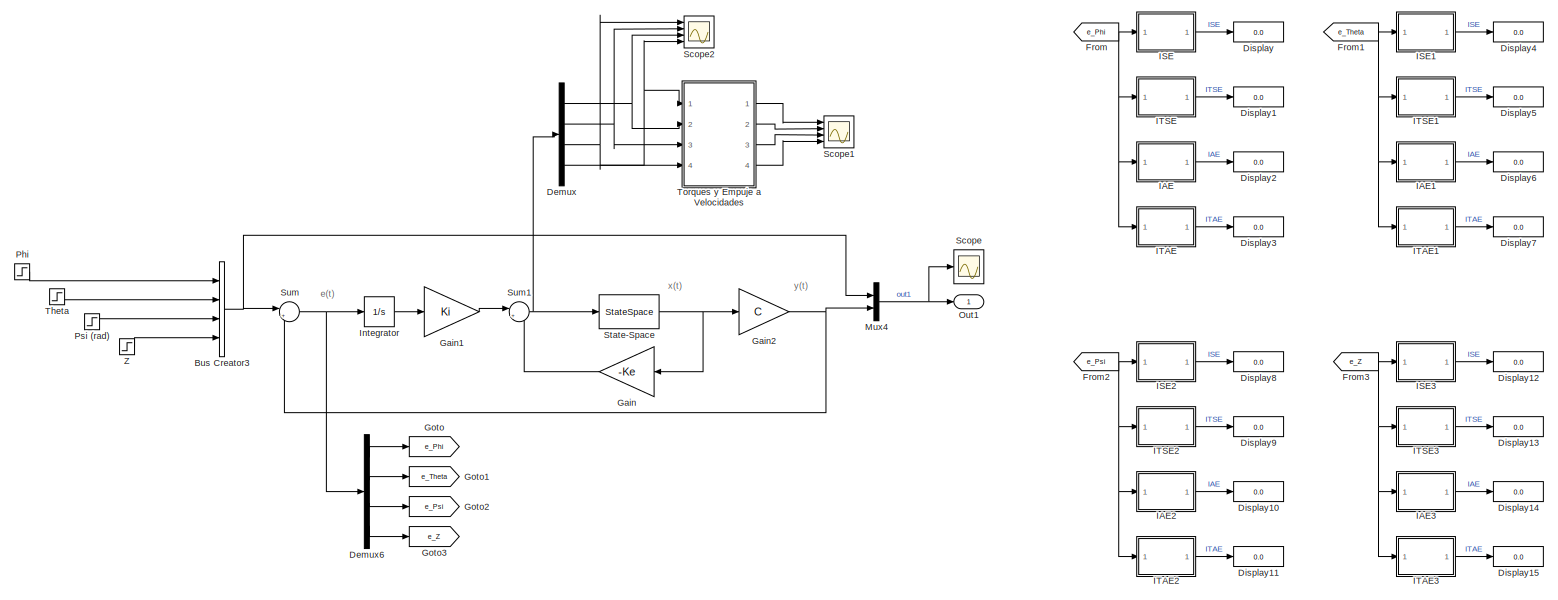
[diagram: root canvas - part 1/1, most of the canvas]
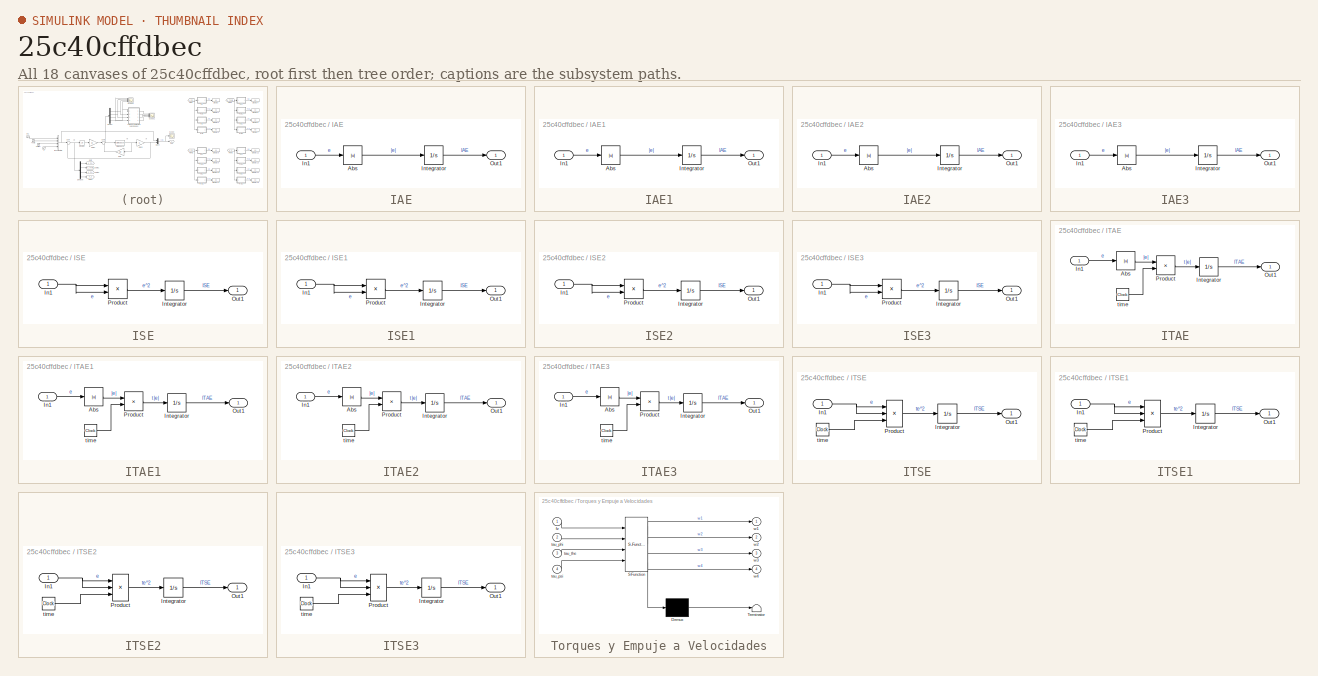
[diagram: thumbnail index - all 18 canvases of the model, root first then tree order]
MODEL slx_25c40cffdbec
KIND model
CONFIG AbsTol = auto
CONFIG EnableMultiTasking = off
CONFIG FixedStep = auto
CONFIG MaxStep = auto
CONFIG MinStep = auto
CONFIG RelTol = 1e-3
CONFIG SampleTimeConstraint = Unconstrained
CONFIG SolverName = VariableStepAuto
CONFIG StartTime = 0.0
CONFIG StopTime = 40
BLOCK [BusCreator] Bus Creator3
  DisplayOption = bar
  InheritFromInputs = on
  Inputs = 4
  Ports = [4, 1]
BLOCK [Demux] Demux
  Ports = [1, 4]
BLOCK [Demux] Demux6
  Ports = [1, 4]
BLOCK [Display] Display
  Decimation = 1
  Ports = [1]
BLOCK [Display] Display1
  Decimation = 1
  Ports = [1]
BLOCK [Display] Display10
  Decimation = 1
  Ports = [1]
BLOCK [Display] Display11
  Decimation = 1
  Ports = [1]
BLOCK [Display] Display12
  Decimation = 1
  Ports = [1]
BLOCK [Display] Display13
  Decimation = 1
  Ports = [1]
BLOCK [Display] Display14
  Decimation = 1
  Ports = [1]
BLOCK [Display] Display15
  Decimation = 1
  Ports = [1]
BLOCK [Display] Display2
  Decimation = 1
  Ports = [1]
BLOCK [Display] Display3
  Decimation = 1
  Ports = [1]
BLOCK [Display] Display4
  Decimation = 1
  Ports = [1]
BLOCK [Display] Display5
  Decimation = 1
  Ports = [1]
BLOCK [Display] Display6
  Decimation = 1
  Ports = [1]
BLOCK [Display] Display7
  Decimation = 1
  Ports = [1]
BLOCK [Display] Display8
  Decimation = 1
  Ports = [1]
BLOCK [Display] Display9
  Decimation = 1
  Ports = [1]
BLOCK [From] From
  GotoTag = e_Phi
BLOCK [From] From1
  GotoTag = e_Theta
BLOCK [From] From2
  GotoTag = e_Psi
BLOCK [From] From3
  GotoTag = e_Z
BLOCK [Gain] Gain
  Gain = -Ke
  Multiplication = Matrix(K*u) (u vector)
BLOCK [Gain] Gain1
  Gain = Ki
  Multiplication = Matrix(K*u) (u vector)
BLOCK [Gain] Gain2
  Gain = C
  Multiplication = Matrix(K*u) (u vector)
BLOCK [Goto] Goto
  GotoTag = e_Phi
BLOCK [Goto] Goto1
  GotoTag = e_Theta
BLOCK [Goto] Goto2
  GotoTag = e_Psi
BLOCK [Goto] Goto3
  GotoTag = e_Z
BLOCK [SubSystem] IAE
  Ports = [1, 1]
  RequestExecContextInheritance = off
BLOCK [Abs] IAE/Abs
  SaturateOnIntegerOverflow = off
BLOCK [Inport] IAE/In1
BLOCK [Integrator] IAE/Integrator
  Ports = [1, 1]
BLOCK [Outport] IAE/Out1
BLOCK [SubSystem] IAE1
  Ports = [1, 1]
  RequestExecContextInheritance = off
BLOCK [Abs] IAE1/Abs
  SaturateOnIntegerOverflow = off
BLOCK [Inport] IAE1/In1
BLOCK [Integrator] IAE1/Integrator
  Ports = [1, 1]
BLOCK [Outport] IAE1/Out1
BLOCK [SubSystem] IAE2
  Ports = [1, 1]
  RequestExecContextInheritance = off
BLOCK [Abs] IAE2/Abs
  SaturateOnIntegerOverflow = off
BLOCK [Inport] IAE2/In1
BLOCK [Integrator] IAE2/Integrator
  Ports = [1, 1]
BLOCK [Outport] IAE2/Out1
BLOCK [SubSystem] IAE3
  Ports = [1, 1]
  RequestExecContextInheritance = off
BLOCK [Abs] IAE3/Abs
  SaturateOnIntegerOverflow = off
BLOCK [Inport] IAE3/In1
BLOCK [Integrator] IAE3/Integrator
  Ports = [1, 1]
BLOCK [Outport] IAE3/Out1
BLOCK [SubSystem] ISE
  Ports = [1, 1]
  RequestExecContextInheritance = off
BLOCK [Inport] ISE/In1
BLOCK [Integrator] ISE/Integrator
  Ports = [1, 1]
BLOCK [Outport] ISE/Out1
BLOCK [Product] ISE/Product
  Ports = [2, 1]
BLOCK [SubSystem] ISE1
  Ports = [1, 1]
  RequestExecContextInheritance = off
BLOCK [Inport] ISE1/In1
BLOCK [Integrator] ISE1/Integrator
  Ports = [1, 1]
BLOCK [Outport] ISE1/Out1
BLOCK [Product] ISE1/Product
  Ports = [2, 1]
BLOCK [SubSystem] ISE2
  Ports = [1, 1]
  RequestExecContextInheritance = off
BLOCK [Inport] ISE2/In1
BLOCK [Integrator] ISE2/Integrator
  Ports = [1, 1]
BLOCK [Outport] ISE2/Out1
BLOCK [Product] ISE2/Product
  Ports = [2, 1]
BLOCK [SubSystem] ISE3
  Ports = [1, 1]
  RequestExecContextInheritance = off
BLOCK [Inport] ISE3/In1
BLOCK [Integrator] ISE3/Integrator
  Ports = [1, 1]
BLOCK [Outport] ISE3/Out1
BLOCK [Product] ISE3/Product
  Ports = [2, 1]
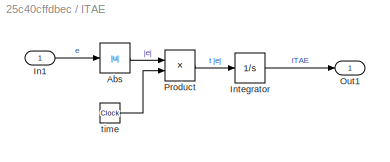
BLOCK [SubSystem] ITAE
  Ports = [1, 1]
  RequestExecContextInheritance = off
BLOCK [Abs] ITAE/Abs
  SaturateOnIntegerOverflow = off
BLOCK [Inport] ITAE/In1
BLOCK [Integrator] ITAE/Integrator
  Ports = [1, 1]
BLOCK [Outport] ITAE/Out1
BLOCK [Product] ITAE/Product
  Ports = [2, 1]
BLOCK [Clock] ITAE/time
BLOCK [SubSystem] ITAE1
  Ports = [1, 1]
  RequestExecContextInheritance = off
BLOCK [Abs] ITAE1/Abs
  SaturateOnIntegerOverflow = off
BLOCK [Inport] ITAE1/In1
BLOCK [Integrator] ITAE1/Integrator
  Ports = [1, 1]
BLOCK [Outport] ITAE1/Out1
BLOCK [Product] ITAE1/Product
  Ports = [2, 1]
BLOCK [Clock] ITAE1/time
BLOCK [SubSystem] ITAE2
  Ports = [1, 1]
  RequestExecContextInheritance = off
BLOCK [Abs] ITAE2/Abs
  SaturateOnIntegerOverflow = off
BLOCK [Inport] ITAE2/In1
BLOCK [Integrator] ITAE2/Integrator
  Ports = [1, 1]
BLOCK [Outport] ITAE2/Out1
BLOCK [Product] ITAE2/Product
  Ports = [2, 1]
BLOCK [Clock] ITAE2/time
BLOCK [SubSystem] ITAE3
  Ports = [1, 1]
  RequestExecContextInheritance = off
BLOCK [Abs] ITAE3/Abs
  SaturateOnIntegerOverflow = off
BLOCK [Inport] ITAE3/In1
BLOCK [Integrator] ITAE3/Integrator
  Ports = [1, 1]
BLOCK [Outport] ITAE3/Out1
BLOCK [Product] ITAE3/Product
  Ports = [2, 1]
BLOCK [Clock] ITAE3/time
BLOCK [SubSystem] ITSE
  Ports = [1, 1]
  RequestExecContextInheritance = off
BLOCK [Inport] ITSE/In1
BLOCK [Integrator] ITSE/Integrator
  Ports = [1, 1]
BLOCK [Outport] ITSE/Out1
BLOCK [Product] ITSE/Product
  Inputs = 3
  Ports = [3, 1]
BLOCK [Clock] ITSE/time
BLOCK [SubSystem] ITSE1
  Ports = [1, 1]
  RequestExecContextInheritance = off
BLOCK [Inport] ITSE1/In1
BLOCK [Integrator] ITSE1/Integrator
  Ports = [1, 1]
BLOCK [Outport] ITSE1/Out1
BLOCK [Product] ITSE1/Product
  Inputs = 3
  Ports = [3, 1]
BLOCK [Clock] ITSE1/time
BLOCK [SubSystem] ITSE2
  Ports = [1, 1]
  RequestExecContextInheritance = off
BLOCK [Inport] ITSE2/In1
BLOCK [Integrator] ITSE2/Integrator
  Ports = [1, 1]
BLOCK [Outport] ITSE2/Out1
BLOCK [Product] ITSE2/Product
  Inputs = 3
  Ports = [3, 1]
BLOCK [Clock] ITSE2/time
BLOCK [SubSystem] ITSE3
  Ports = [1, 1]
  RequestExecContextInheritance = off
BLOCK [Inport] ITSE3/In1
BLOCK [Integrator] ITSE3/Integrator
  Ports = [1, 1]
BLOCK [Outport] ITSE3/Out1
BLOCK [Product] ITSE3/Product
  Inputs = 3
  Ports = [3, 1]
BLOCK [Clock] ITSE3/time
BLOCK [Integrator] Integrator
  Ports = [1, 1]
BLOCK [Mux] Mux4
  DisplayOption = bar
  Inputs = 2
  Ports = [2, 1]
BLOCK [Outport] Out1
BLOCK [Step] Phi
  After = 10
  SampleTime = 0
  Time = 10
BLOCK [Step] Psi (rad)
  After = pi/2-0.001
  SampleTime = 0
  Time = 30
BLOCK [Scope] Scope
  Floating = off
  NumInputPorts = 1
  Ports = [1]
  ScopeSpecificationString = Simulink.scopes.TimeScopeBlockCfg('CurrentConfiguration', extmgr.ConfigurationSet(extmgr.Configuration('Core','General UI',true),extmgr.Configuration('Core','Source UI',true),extmgr.Configuration('Sources','WiredSimulink',true),extmgr.Configuration('Visuals','Time Domain',true,'SerializedDisplays',{struct('MinYLimReal','-1.87508','MaxYLimReal','16.87572','YLabelReal','','MinYLimMag','0.00000','Max...<+1710ch>
BLOCK [Scope] Scope1
  Floating = off
  NumInputPorts = 4
  Ports = [4]
  ScopeSpecificationString = Simulink.scopes.TimeScopeBlockCfg('CurrentConfiguration', extmgr.ConfigurationSet(extmgr.Configuration('Core','General UI',true),extmgr.Configuration('Core','Source UI',true),extmgr.Configuration('Sources','WiredSimulink',true,'DataLoggingVariableName','ScopeData1'),extmgr.Configuration('Visuals','Time Domain',true,'SerializedDisplays',{struct('MinYLimReal','15.06231','MaxYLimReal','114.43919','YL...<+1909ch>
BLOCK [Scope] Scope2
  Floating = off
  NumInputPorts = 4
  Ports = [4]
  ScopeSpecificationString = Simulink.scopes.TimeScopeBlockCfg('CurrentConfiguration', extmgr.ConfigurationSet(extmgr.Configuration('Core','General UI',true),extmgr.Configuration('Core','Source UI',true),extmgr.Configuration('Sources','WiredSimulink',true,'DataLoggingVariableName','ScopeData2'),extmgr.Configuration('Visuals','Time Domain',true,'SerializedDisplays',{struct('MinYLimReal','-20.70474','MaxYLimReal','9.36899','YLa...<+1542ch>
BLOCK [StateSpace] State-Space
  A = A
  B = B
  C = eye(12)
  D = D
  InitialCondition = 0
  ParameterTunability = Unconstrained
  Ports = [1, 1]
BLOCK [Sum] Sum
  Inputs = |+-
  Ports = [2, 1]
BLOCK [Sum] Sum1
  Inputs = |+-
  Ports = [2, 1]
BLOCK [Step] Theta
  After = 15
  SampleTime = 0
  Time = 20
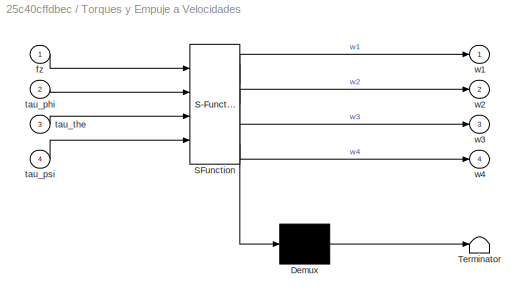
BLOCK [SubSystem] Torques y Empuje a Velocidades
  ErrorFcn = Stateflow.Translate.translate
  PermitHierarchicalResolution = ExplicitOnly
  Ports = [4, 4]
  RequestExecContextInheritance = off
  SFBlockType = MATLAB Function
  TreatAsAtomicUnit = on
BLOCK [Demux] Torques y Empuje a Velocidades/ Demux 
  Outputs = 1
  Ports = [1, 1]
BLOCK [S-Function] Torques y Empuje a Velocidades/ SFunction 
  EnableBusSupport = on
  FunctionName = sf_sfun
  PortCounts = [4 5]
  Ports = [4, 5]
  SFcnIsStateOwnerBlock = off
  SFunctionDeploymentMode = off
  Tag = Stateflow S-Function 1
BLOCK [Terminator] Torques y Empuje a Velocidades/ Terminator 
BLOCK [Inport] Torques y Empuje a Velocidades/fz
BLOCK [Inport] Torques y Empuje a Velocidades/tau_phi
  Port = 2
BLOCK [Inport] Torques y Empuje a Velocidades/tau_psi
  Port = 4
BLOCK [Inport] Torques y Empuje a Velocidades/tau_the
  Port = 3
BLOCK [Outport] Torques y Empuje a Velocidades/w1
BLOCK [Outport] Torques y Empuje a Velocidades/w2
  Port = 2
BLOCK [Outport] Torques y Empuje a Velocidades/w3
  Port = 3
BLOCK [Outport] Torques y Empuje a Velocidades/w4
  Port = 4
BLOCK [Step] Z
  After = 10
  SampleTime = 0
  Time = 0
ANNOTATION (root): e(t)
ANNOTATION (root): x(t)
ANNOTATION (root): y(t)
NET Bus Creator3:1 -> Mux4:1, Sum:1
LINE Demux6:1 -> Goto:1
LINE Demux6:2 -> Goto1:1
LINE Demux6:3 -> Goto2:1
LINE Demux6:4 -> Goto3:1
NET Demux:1 -> Scope2:3, Torques y Empuje a Velocidades:2
NET Demux:2 -> Scope2:2, Torques y Empuje a Velocidades:3
NET Demux:3 -> Scope2:1, Torques y Empuje a Velocidades:4
NET Demux:4 -> Scope2:4, Torques y Empuje a Velocidades:1
NET From1:1 -> IAE1:1, ISE1:1, ITAE1:1, ITSE1:1
NET From2:1 -> IAE2:1, ISE2:1, ITAE2:1, ITSE2:1
NET From3:1 -> IAE3:1, ISE3:1, ITAE3:1, ITSE3:1
NET From:1 -> IAE:1, ISE:1, ITAE:1, ITSE:1
LINE Gain1:1 -> Sum1:1
NET Gain2:1 -> Mux4:2, Sum:2
LINE Gain:1 -> Sum1:2
LINE IAE/Abs:1 -> IAE/Integrator:1
LINE IAE/In1:1 -> IAE/Abs:1
LINE IAE/Integrator:1 -> IAE/Out1:1
LINE IAE1/Abs:1 -> IAE1/Integrator:1
LINE IAE1/In1:1 -> IAE1/Abs:1
LINE IAE1/Integrator:1 -> IAE1/Out1:1
LINE IAE1:1 -> Display6:1
LINE IAE2/Abs:1 -> IAE2/Integrator:1
LINE IAE2/In1:1 -> IAE2/Abs:1
LINE IAE2/Integrator:1 -> IAE2/Out1:1
LINE IAE2:1 -> Display10:1
LINE IAE3/Abs:1 -> IAE3/Integrator:1
LINE IAE3/In1:1 -> IAE3/Abs:1
LINE IAE3/Integrator:1 -> IAE3/Out1:1
LINE IAE3:1 -> Display14:1
LINE IAE:1 -> Display2:1
NET ISE/In1:1 -> ISE/Product:1, ISE/Product:2
LINE ISE/Integrator:1 -> ISE/Out1:1
LINE ISE/Product:1 -> ISE/Integrator:1
NET ISE1/In1:1 -> ISE1/Product:1, ISE1/Product:2
LINE ISE1/Integrator:1 -> ISE1/Out1:1
LINE ISE1/Product:1 -> ISE1/Integrator:1
LINE ISE1:1 -> Display4:1
NET ISE2/In1:1 -> ISE2/Product:1, ISE2/Product:2
LINE ISE2/Integrator:1 -> ISE2/Out1:1
LINE ISE2/Product:1 -> ISE2/Integrator:1
LINE ISE2:1 -> Display8:1
NET ISE3/In1:1 -> ISE3/Product:1, ISE3/Product:2
LINE ISE3/Integrator:1 -> ISE3/Out1:1
LINE ISE3/Product:1 -> ISE3/Integrator:1
LINE ISE3:1 -> Display12:1
LINE ISE:1 -> Display:1
LINE ITAE/Abs:1 -> ITAE/Product:1
LINE ITAE/In1:1 -> ITAE/Abs:1
LINE ITAE/Integrator:1 -> ITAE/Out1:1
LINE ITAE/Product:1 -> ITAE/Integrator:1
LINE ITAE/time:1 -> ITAE/Product:2
LINE ITAE1/Abs:1 -> ITAE1/Product:1
LINE ITAE1/In1:1 -> ITAE1/Abs:1
LINE ITAE1/Integrator:1 -> ITAE1/Out1:1
LINE ITAE1/Product:1 -> ITAE1/Integrator:1
LINE ITAE1/time:1 -> ITAE1/Product:2
LINE ITAE1:1 -> Display7:1
LINE ITAE2/Abs:1 -> ITAE2/Product:1
LINE ITAE2/In1:1 -> ITAE2/Abs:1
LINE ITAE2/Integrator:1 -> ITAE2/Out1:1
LINE ITAE2/Product:1 -> ITAE2/Integrator:1
LINE ITAE2/time:1 -> ITAE2/Product:2
LINE ITAE2:1 -> Display11:1
LINE ITAE3/Abs:1 -> ITAE3/Product:1
LINE ITAE3/In1:1 -> ITAE3/Abs:1
LINE ITAE3/Integrator:1 -> ITAE3/Out1:1
LINE ITAE3/Product:1 -> ITAE3/Integrator:1
LINE ITAE3/time:1 -> ITAE3/Product:2
LINE ITAE3:1 -> Display15:1
LINE ITAE:1 -> Display3:1
NET ITSE/In1:1 -> ITSE/Product:1, ITSE/Product:2
LINE ITSE/Integrator:1 -> ITSE/Out1:1
LINE ITSE/Product:1 -> ITSE/Integrator:1
LINE ITSE/time:1 -> ITSE/Product:3
NET ITSE1/In1:1 -> ITSE1/Product:1, ITSE1/Product:2
LINE ITSE1/Integrator:1 -> ITSE1/Out1:1
LINE ITSE1/Product:1 -> ITSE1/Integrator:1
LINE ITSE1/time:1 -> ITSE1/Product:3
LINE ITSE1:1 -> Display5:1
NET ITSE2/In1:1 -> ITSE2/Product:1, ITSE2/Product:2
LINE ITSE2/Integrator:1 -> ITSE2/Out1:1
LINE ITSE2/Product:1 -> ITSE2/Integrator:1
LINE ITSE2/time:1 -> ITSE2/Product:3
LINE ITSE2:1 -> Display9:1
NET ITSE3/In1:1 -> ITSE3/Product:1, ITSE3/Product:2
LINE ITSE3/Integrator:1 -> ITSE3/Out1:1
LINE ITSE3/Product:1 -> ITSE3/Integrator:1
LINE ITSE3/time:1 -> ITSE3/Product:3
LINE ITSE3:1 -> Display13:1
LINE ITSE:1 -> Display1:1
LINE Integrator:1 -> Gain1:1
NET Mux4:1 -> Out1:1, Scope:1
LINE Phi:1 -> Bus Creator3:1
LINE Psi (rad):1 -> Bus Creator3:3
NET State-Space:1 -> Gain2:1, Gain:1
NET Sum1:1 -> Demux:1, State-Space:1
NET Sum:1 -> Demux6:1, Integrator:1
LINE Theta:1 -> Bus Creator3:2
LINE Torques y Empuje a Velocidades:1 -> Scope1:1
LINE Torques y Empuje a Velocidades:2 -> Scope1:2
LINE Torques y Empuje a Velocidades:3 -> Scope1:3
LINE Torques y Empuje a Velocidades:4 -> Scope1:4
LINE Z:1 -> Bus Creator3:4
note: NET lines group one-source signal fan-out (src -> all destinations, sorted); 1:1 wires keep LINE
CHART Torques y Empuje a Velocidades states=1 transitions=1
  STATE_LABEL 'eML_blk_kernel()'
  STATE_LABEL 'SCRIPT:\nfunction [w1,w2,w3,w4] = H(fz,tau_phi,tau_the,tau_psi)\n%         Salidas          Entradas\n\n% Constantes \nl = 0.2;    % m\nkf = 0.007; % Nm/A\nkm = 0.8;   % V/kRPM\n\n% Matriz H\nH = [kf     kf      kf      kf;\n     0      l*kf    0       -l*kf;\n     -l*kf  0       l*kf    0;  \n     km     -km     km      -km];\n \n% Inversa de H\nH_inversa = inv(H);\n\n% Vector de entrada\nTorques = [fz;\n           ...<+459ch>'
CHART  states=0 transitions=0
